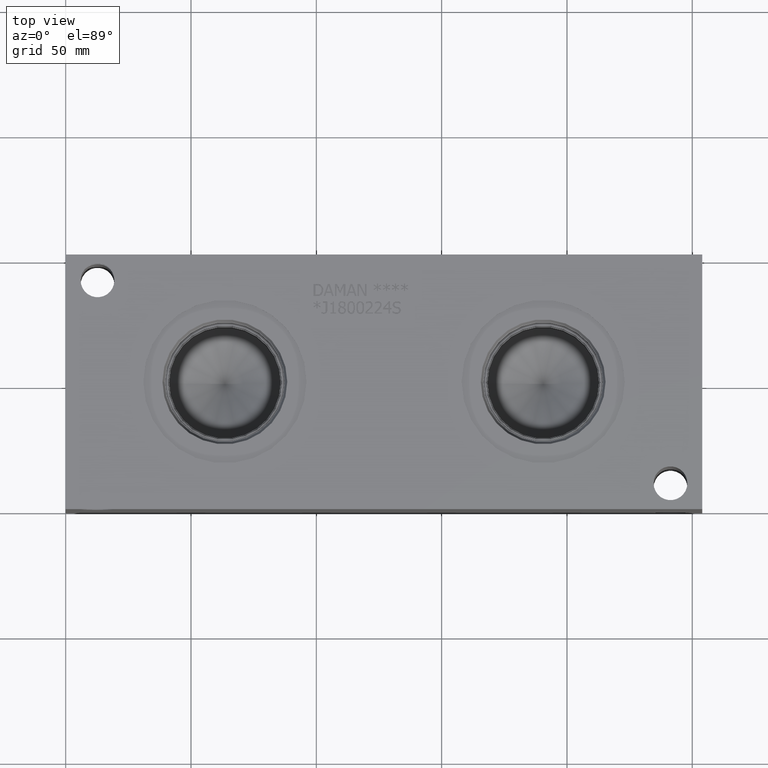
[diagram: clean part render]
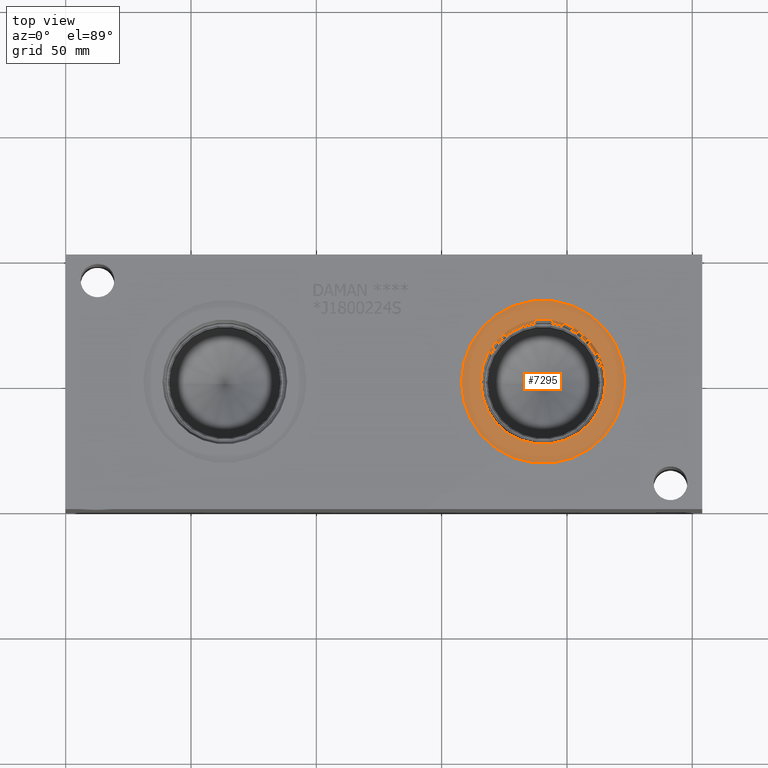
[diagram: same view with one face highlighted and labeled with its STEP entity id]
A machine part, top view. The second image highlights one B-rep face of the part: STEP entity #7295.
In plain terms, the highlighted planar face has unit normal (0, 0, -1).
Its self-contained STEP definition (entity closure, byte-faithful):
#129=CIRCLE('',#7655,32.5628);
#130=CIRCLE('',#7656,32.5628);
#131=CIRCLE('',#7658,24.9047);
#132=CIRCLE('',#7659,24.9047);
#190=FACE_BOUND('',#1242,.T.);
#835=FACE_OUTER_BOUND('',#1241,.T.);
#1241=EDGE_LOOP('',(#6300,#6301));
#1242=EDGE_LOOP('',(#6302,#6303));
#3359=VERTEX_POINT('',#12356);
#3360=VERTEX_POINT('',#12358);
#3361=VERTEX_POINT('',#12362);
#3362=VERTEX_POINT('',#12363);
#4351=EDGE_CURVE('',#3359,#3360,#129,.T.);
#4352=EDGE_CURVE('',#3360,#3359,#130,.T.);
#4353=EDGE_CURVE('',#3361,#3362,#131,.T.);
#4354=EDGE_CURVE('',#3362,#3361,#132,.T.);
#6300=ORIENTED_EDGE('',*,*,#4352,.F.);
#6301=ORIENTED_EDGE('',*,*,#4351,.F.);
#6302=ORIENTED_EDGE('',*,*,#4353,.T.);
#6303=ORIENTED_EDGE('',*,*,#4354,.T.);
#6632=PLANE('',#7657);
#7295=ADVANCED_FACE('',(#835,#190),#6632,.F.);
#7655=AXIS2_PLACEMENT_3D('',#12359,#9054,#9055);
#7656=AXIS2_PLACEMENT_3D('',#12360,#9056,#9057);
#7657=AXIS2_PLACEMENT_3D('',#12361,#9058,#9059);
#7658=AXIS2_PLACEMENT_3D('',#12364,#9060,#9061);
#7659=AXIS2_PLACEMENT_3D('',#12365,#9062,#9063);
#9054=DIRECTION('center_axis',(0.,0.,-1.));
#9055=DIRECTION('ref_axis',(1.,0.,0.));
#9056=DIRECTION('center_axis',(0.,0.,-1.));
#9057=DIRECTION('ref_axis',(1.,0.,0.));
#9058=DIRECTION('center_axis',(0.,0.,-1.));
#9059=DIRECTION('ref_axis',(-1.,0.,0.));
#9060=DIRECTION('center_axis',(0.,0.,-1.));
#9061=DIRECTION('ref_axis',(1.,0.,0.));
#9062=DIRECTION('center_axis',(0.,0.,-1.));
#9063=DIRECTION('ref_axis',(1.,0.,0.));
#12356=CARTESIAN_POINT('',(157.9372,50.8,100.8126));
#12358=CARTESIAN_POINT('',(223.0628,50.8,100.8126));
#12359=CARTESIAN_POINT('Origin',(190.5,50.8,100.8126));
#12360=CARTESIAN_POINT('Origin',(190.5,50.8,100.8126));
#12361=CARTESIAN_POINT('Origin',(215.4047,50.8,100.8126));
#12362=CARTESIAN_POINT('',(215.4047,50.8,100.8126));
#12363=CARTESIAN_POINT('',(165.5953,50.8,100.8126));
#12364=CARTESIAN_POINT('Origin',(190.5,50.8,100.8126));
#12365=CARTESIAN_POINT('Origin',(190.5,50.8,100.8126));